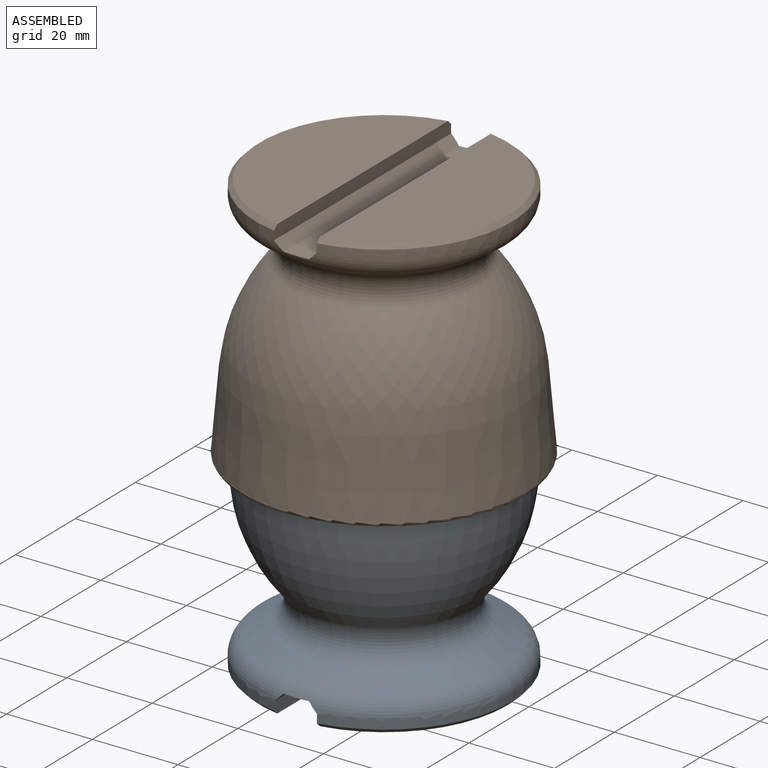
[diagram: assembled view]
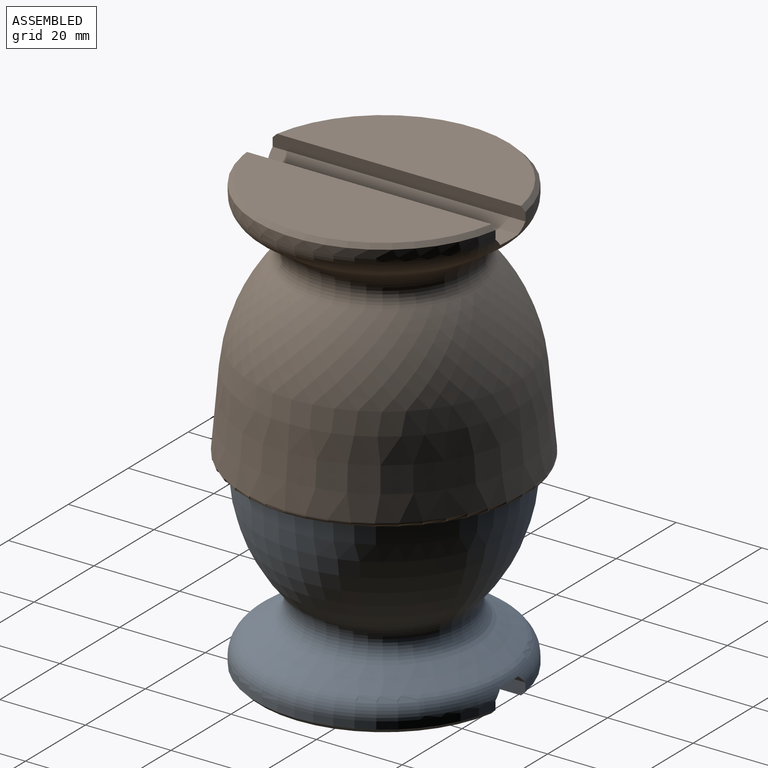
[diagram: assembled view, second angle]
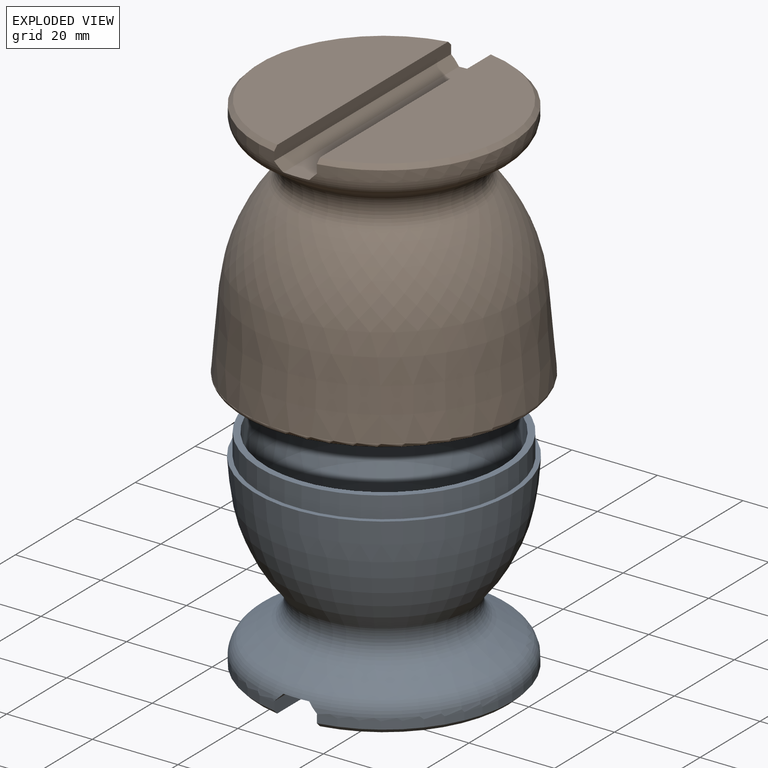
[diagram: exploded view]
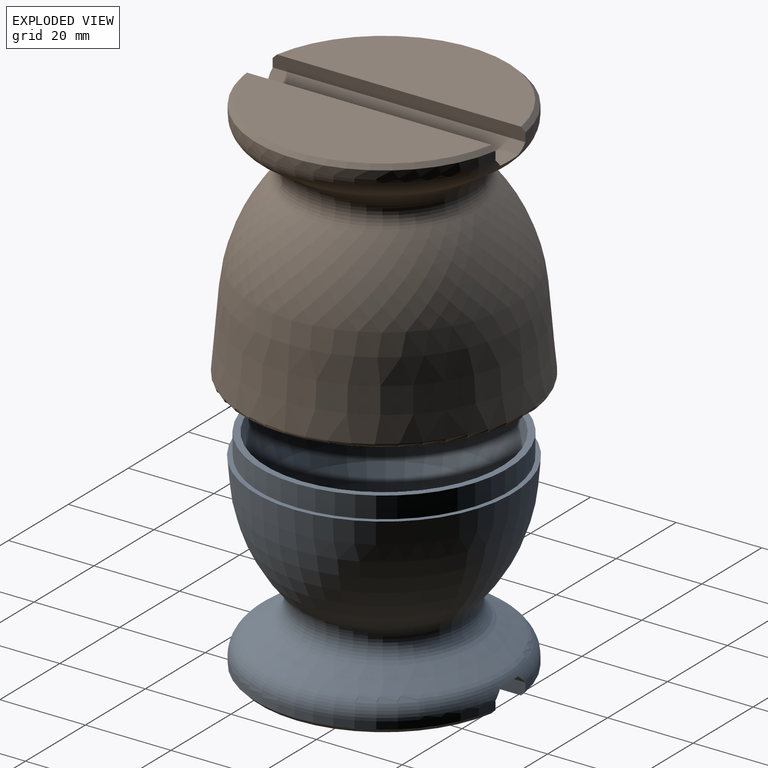
[diagram: exploded view, second angle]
ASSEMBLY  parts=2 mates=2
PART A: 23 faces, bbox 64.9x64.9x50.1 mm
  f0: cylinder r=29.95mm len=59.06mm, axis (0,0,1), area 146.4mm2, adj f1,f17,f19
  f1: cone r=28.95mm half-angle=45deg, axis (0,0,1), area 116.6mm2, adj f0,f2,f19
  f2: plane 57.03x23.95mm, normal (0,0,-1), area 1028.6mm2, adj f1,f19
  f3: cylinder r=29.95mm len=59.06mm, axis (0,0,1), area 146.4mm2, adj f4,f17,f18
  f4: cone r=28.95mm half-angle=45deg, axis (0,0,1), area 116.6mm2, adj f3,f5,f18
  f5: plane 57.03x23.95mm, normal (0,0,-1), area 1028.6mm2, adj f4,f18
  f6: plane 4.37x4.37mm, normal (0,0,1), area 15mm2, adj f7
  f7: torus R=2.18mm, axis (0,0,1), area 116.1mm2, adj f6,f8
  f8: revolved ~53.28x53.28mm, area 4419.5mm2, adj f7,f9
  f9: cone r=26.64mm half-angle=5deg, axis (0,0,1), area 1681.5mm2, adj f8,f10
  f10: plane 58x58mm, normal (0,0,1), area 266.2mm2, adj f9,f11
  f11: cylinder r=29mm len=58mm, axis (0,0,1), area 911.1mm2, adj f10,f12
  f12: plane 60.15x60.15mm, normal (0,0,1), area 199.3mm2, adj f11,f13
  f13: cone r=29.63mm half-angle=5deg, axis (0,0,1), area 962.1mm2, adj f12,f14
  f14: revolved ~59.25x59.25mm, area 3935.8mm2, adj f13,f15
  f15: torus R=24.17mm, axis (0,0,1), area 1084mm2, adj f14,f16
  f16: cone r=21.57mm half-angle=58.6deg, axis (0,0,-1), area 1083.2mm2, adj f15,f17
  f17: torus R=24.95mm, axis (0,0,1), area 896.9mm2, adj f0,f3,f16,f18,f19,f20,f21,f22
  f18: plane 59.07x3mm, normal (1,0,0), area 176.2mm2, adj f3,f4,f5,f17,f22
  f19: plane 59.07x3mm, normal (-1,0,0), area 176.2mm2, adj f0,f1,f2,f17,f21
  f20: plane 58.83x6mm, normal (0,0,-1), area 352.3mm2, adj f17,f21,f22
  f21: plane 59.17x2.05mm, normal (-0.71,0,-0.71), area 166.8mm2, adj f17,f19,f20
  f22: plane 59.17x2.05mm, normal (0.71,0,-0.71), area 166.8mm2, adj f17,f18,f20
PART B: 24 faces, bbox 71.8x71.8x59.2 mm
  f0: cone r=28.95mm half-angle=45deg, axis (0,0,-1), area 116.6mm2, adj f1,f2,f21
  f1: plane 57.03x23.95mm, normal (0,0,1), area 1028.6mm2, adj f0,f21
  f2: cylinder r=29.95mm len=59.06mm, axis (0,0,1), area 146.4mm2, adj f0,f17,f21
  f3: cone r=28.95mm half-angle=45deg, axis (0,0,-1), area 116.6mm2, adj f4,f18,f20
  f4: plane 57.03x23.95mm, normal (0,0,1), area 1028.6mm2, adj f3,f20
  f5: plane 2.76x2.76mm, normal (0,0,-1), area 6mm2, adj f6
  f6: torus R=1.38mm, axis (0,0,1), area 82.4mm2, adj f5,f7
  f7: revolved ~53.28x53.28mm, area 4464.3mm2, adj f6,f8
  f8: cone r=26.64mm half-angle=5deg, axis (0,0,-1), area 2090.8mm2, adj f7,f9
  f9: plane 58.1x58.1mm, normal (0,0,-1), area 239.7mm2, adj f8,f10
  f10: cylinder r=29.05mm len=58.1mm, axis (0,0,1), area 1095.2mm2, adj f9,f11
  f11: plane 64.32x64.32mm, normal (0,0,-1), area 597.7mm2, adj f10,f12
  f12: torus R=32.16mm, axis (0,0,1), area 341.9mm2, adj f11,f13
  f13: cone r=31.62mm half-angle=5deg, axis (0,0,-1), area 3584.6mm2, adj f12,f14
  f14: revolved ~63.24x63.24mm, area 4387.6mm2, adj f13,f15
  f15: torus R=25.9mm, axis (0,0,1), area 1173.4mm2, adj f14,f16
  f16: cone r=23.3mm half-angle=58.6deg, axis (0,0,1), area 797.4mm2, adj f15,f17
  f17: torus R=24.95mm, axis (0,0,1), area 896.9mm2, adj f2,f16,f18,f19,f20,f21,f22,f23
  f18: cylinder r=29.95mm len=59.06mm, axis (0,0,1), area 146.4mm2, adj f3,f17,f20
  f19: plane 58.83x6mm, normal (0,0,1), area 352.3mm2, adj f17,f22,f23
  f20: plane 59.07x3mm, normal (1,0,0), area 176.2mm2, adj f3,f4,f17,f18,f23
  f21: plane 59.07x3mm, normal (-1,0,0), area 176.2mm2, adj f0,f1,f2,f17,f22
  f22: plane 59.17x2.05mm, normal (-0.71,0,0.71), area 166.8mm2, adj f17,f19,f21
  f23: plane 59.17x2.05mm, normal (0.71,0,0.71), area 166.8mm2, adj f17,f19,f20
PLACE A t=(-10.13,-5.31,-12.75)mm
PLACE B t=(-10.13,-5.31,15.42)mm
MATE planar B.f12 <-> A.f0  axis (0,0,-1) through (-10.13,-5.31,17.25)mm
MATE slider B.f0 <-> A.f0  axis (0,0,-1) through (-10.13,-5.31,17.25)mm
